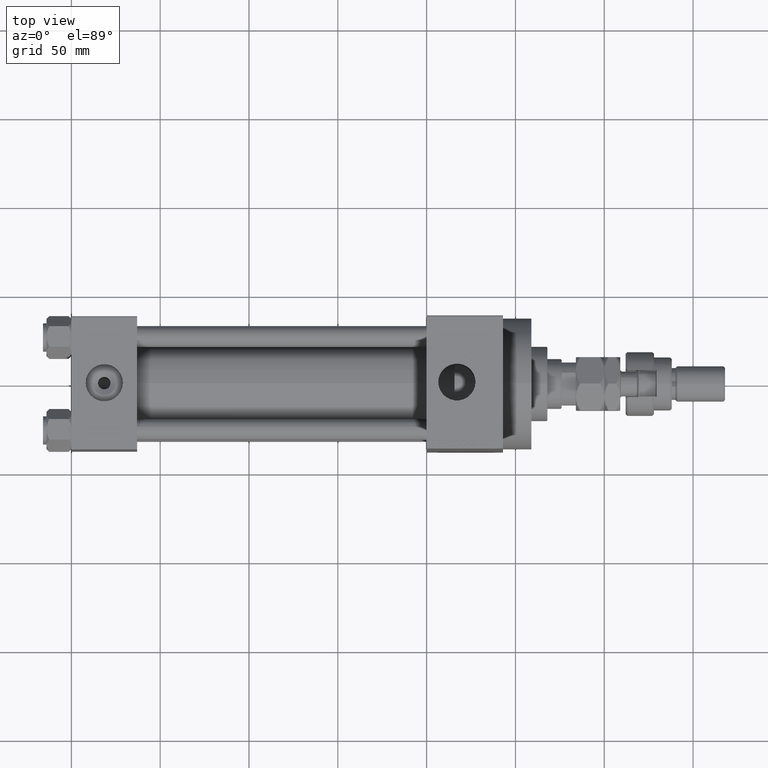
[diagram: clean part render]
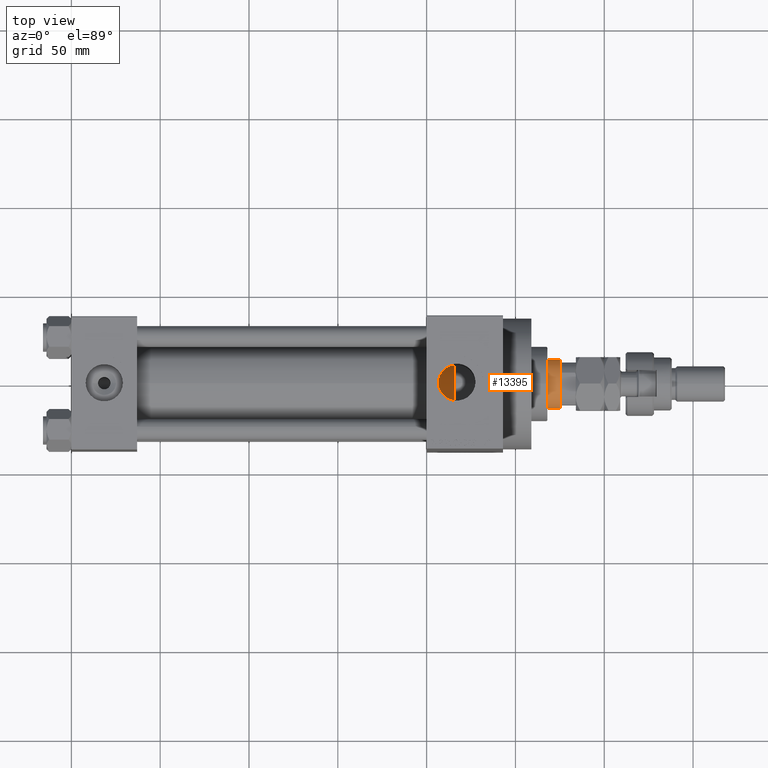
[diagram: same view with one face highlighted and labeled with its STEP entity id]
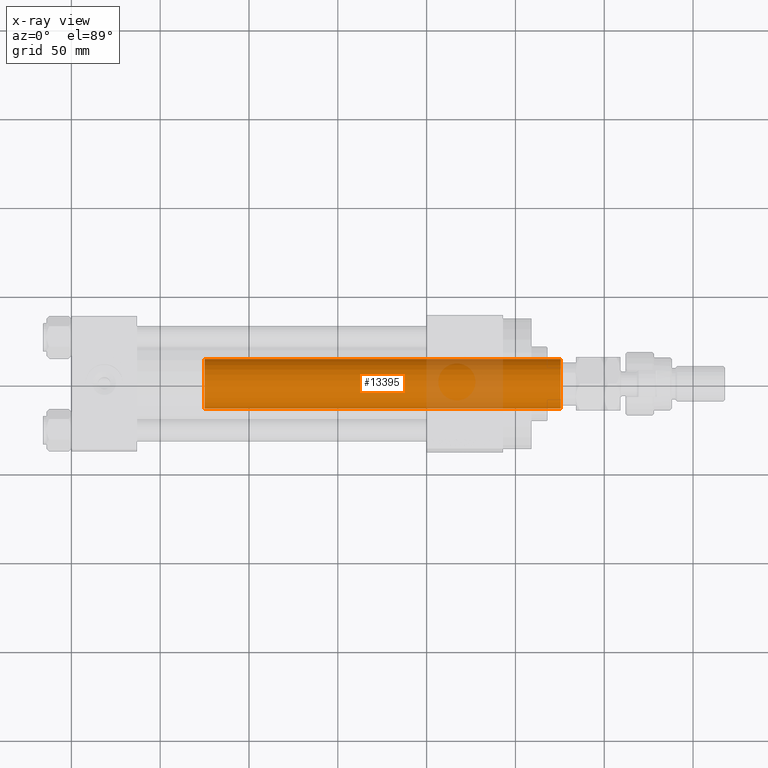
[diagram: x-ray of the same camera — body ghosted, the highlighted face saturated]
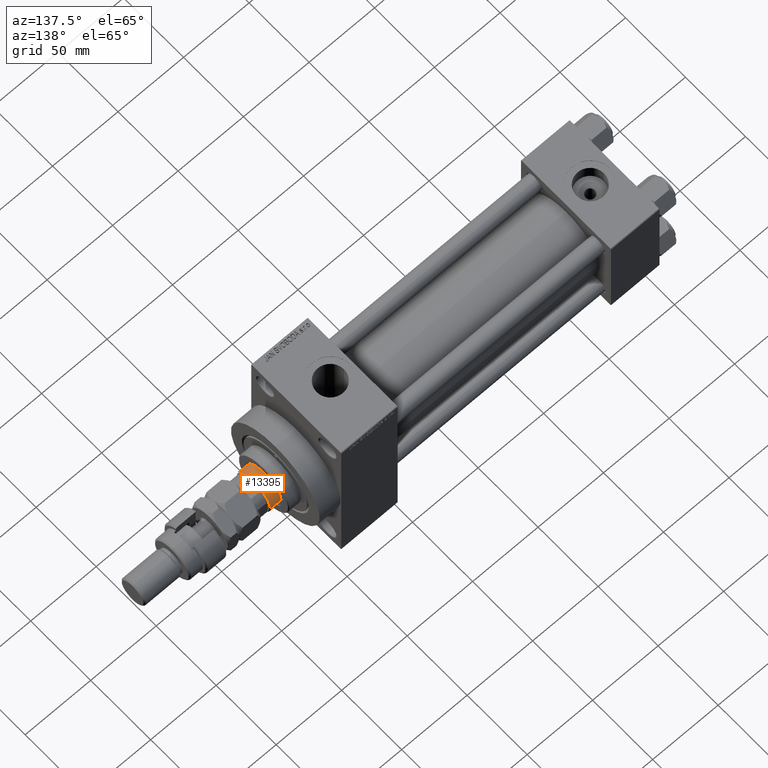
[diagram: same view with one face highlighted and labeled with its STEP entity id]
A machine part, top view. The second image highlights one B-rep face of the part: STEP entity #13395.
The next image is the same camera in x-ray: the body ghosted, the highlighted face saturated — about 15% of this face is hidden behind the body in this view.
A second angle (auxiliary view) of the same face is appended — the face is thin or edge-on in the first view.
In plain terms, the highlighted cylindrical surface (edge-blend (fillet) strip) has radius 14 mm, axis along (-1, 0, 0).
Its self-contained STEP definition (entity closure, byte-faithful):
#3190 = CARTESIAN_POINT ( 'NONE',  ( 0.000000000000000000, 0.000000000000000000, 239.0000000000000284 ) ) ;
#4195 = DIRECTION ( 'NONE',  ( 1.000000000000000000, 0.000000000000000000, 0.000000000000000000 ) ) ;
#5160 = DIRECTION ( 'NONE',  ( -0.000000000000000000, -0.000000000000000000, -1.000000000000000000 ) ) ;
#6616 = EDGE_CURVE ( 'NONE', #15793, #8135, #36399, .T. ) ;
#7418 = CIRCLE ( 'NONE', #17118, 14.00000000000000178 ) ;
#8135 = VERTEX_POINT ( 'NONE', #35790 ) ;
#9631 = CIRCLE ( 'NONE', #36411, 14.00000000000000178 ) ;
#10164 = DIRECTION ( 'NONE',  ( 1.000000000000000000, 0.000000000000000000, 0.000000000000000000 ) ) ;
#11532 = FACE_OUTER_BOUND ( 'NONE', #27549, .T. ) ;
#13073 = EDGE_CURVE ( 'NONE', #34227, #8135, #9631, .T. ) ;
#13395 = ADVANCED_FACE ( 'NONE', ( #11532 ), #19125, .T. ) ;
#14446 = CARTESIAN_POINT ( 'NONE',  ( 0.000000000000000000, 0.000000000000000000, 38.00000000000000000 ) ) ;
#15793 = VERTEX_POINT ( 'NONE', #25447 ) ;
#16807 = ORIENTED_EDGE ( 'NONE', *, *, #39115, .T. ) ;
#17118 = AXIS2_PLACEMENT_3D ( 'NONE', #38749, #35168, #4195 ) ;
#17907 = ORIENTED_EDGE ( 'NONE', *, *, #6616, .F. ) ;
#19125 = CYLINDRICAL_SURFACE ( 'NONE', #42960, 14.00000000000000178 ) ;
#25447 = CARTESIAN_POINT ( 'NONE',  ( 14.00000000000000178, 1.714505518806294835E-15, 238.5000000000000284 ) ) ;
#26530 = DIRECTION ( 'NONE',  ( -0.000000000000000000, -0.000000000000000000, -1.000000000000000000 ) ) ;
#27467 = VECTOR ( 'NONE', #46844, 1000.000000000000000 ) ;
#27549 = EDGE_LOOP ( 'NONE', ( #17907, #47685, #16807, #41560 ) ) ;
#28883 = VECTOR ( 'NONE', #5160, 1000.000000000000000 ) ;
#29872 = CARTESIAN_POINT ( 'NONE',  ( -14.00000000000000178, 0.000000000000000000, 38.00000000000000000 ) ) ;
#31314 = LINE ( 'NONE', #39473, #27467 ) ;
#32078 = CARTESIAN_POINT ( 'NONE',  ( 14.00000000000000178, 1.714505518806294835E-15, 239.0000000000000284 ) ) ;
#34012 = DIRECTION ( 'NONE',  ( 0.000000000000000000, 0.000000000000000000, 1.000000000000000000 ) ) ;
#34227 = VERTEX_POINT ( 'NONE', #29872 ) ;
#35168 = DIRECTION ( 'NONE',  ( 0.000000000000000000, 0.000000000000000000, -1.000000000000000000 ) ) ;
#35790 = CARTESIAN_POINT ( 'NONE',  ( 14.00000000000000178, 1.714505518806294835E-15, 38.00000000000000000 ) ) ;
#36399 = LINE ( 'NONE', #32078, #28883 ) ;
#36411 = AXIS2_PLACEMENT_3D ( 'NONE', #14446, #34012, #10164 ) ;
#36639 = CARTESIAN_POINT ( 'NONE',  ( -14.00000000000000178, 0.000000000000000000, 238.5000000000000284 ) ) ;
#38483 = DIRECTION ( 'NONE',  ( -1.000000000000000000, 0.000000000000000000, 0.000000000000000000 ) ) ;
#38749 = CARTESIAN_POINT ( 'NONE',  ( 0.000000000000000000, 0.000000000000000000, 238.5000000000000284 ) ) ;
#39115 = EDGE_CURVE ( 'NONE', #41936, #34227, #31314, .T. ) ;
#39473 = CARTESIAN_POINT ( 'NONE',  ( -14.00000000000000178, 0.000000000000000000, 239.0000000000000284 ) ) ;
#41560 = ORIENTED_EDGE ( 'NONE', *, *, #13073, .T. ) ;
#41936 = VERTEX_POINT ( 'NONE', #36639 ) ;
#42960 = AXIS2_PLACEMENT_3D ( 'NONE', #3190, #26530, #38483 ) ;
#46215 = EDGE_CURVE ( 'NONE', #15793, #41936, #7418, .T. ) ;
#46844 = DIRECTION ( 'NONE',  ( -0.000000000000000000, -0.000000000000000000, -1.000000000000000000 ) ) ;
#47685 = ORIENTED_EDGE ( 'NONE', *, *, #46215, .T. ) ;